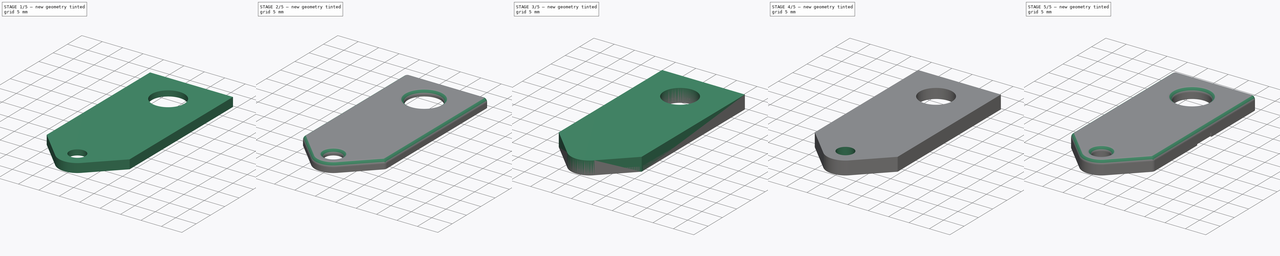
[diagram: build sequence overview — one tinted view per stage of 5, left to right]
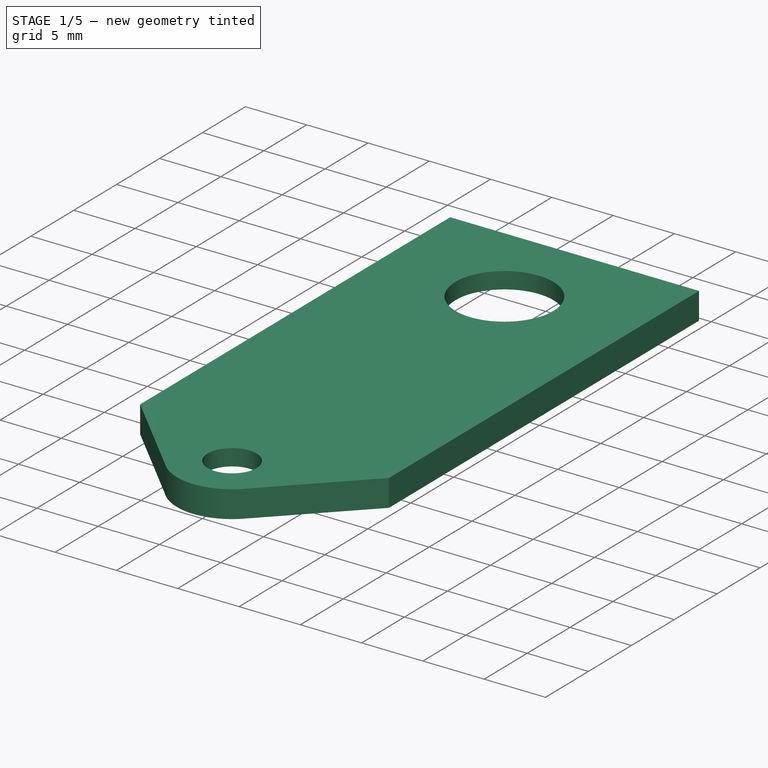
[diagram: stage 1 of 5 — iso view after this stage's code; geometry added in this stage tinted green]
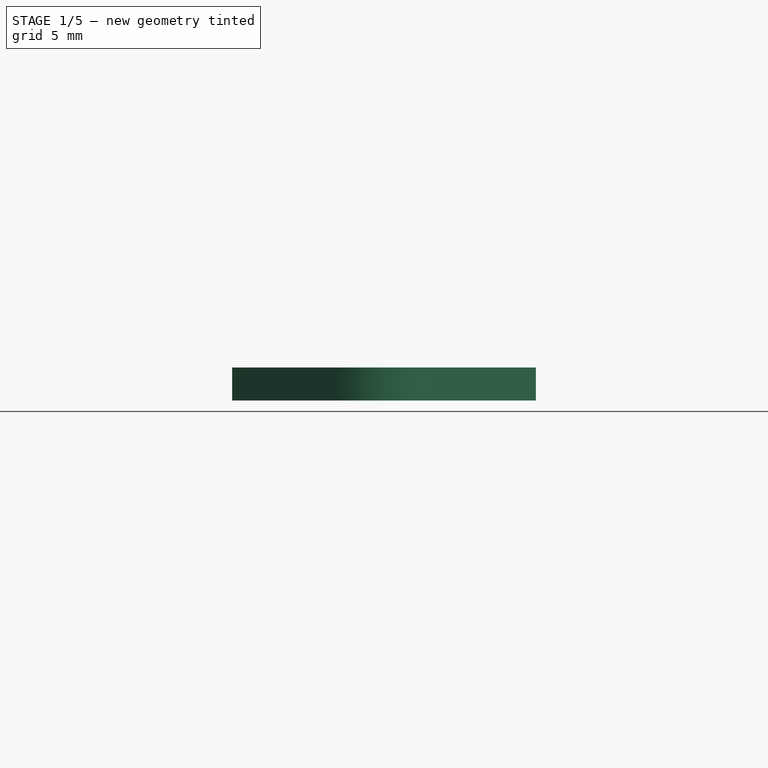
[diagram: stage 1 of 5 — front view after this stage's code; geometry added in this stage tinted green]
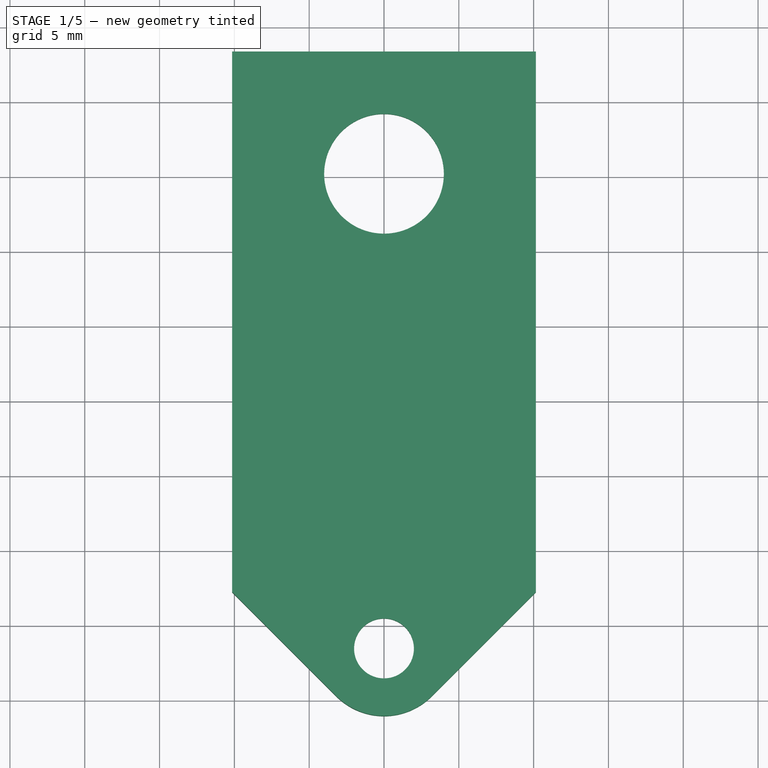
[diagram: stage 1 of 5 — top view after this stage's code; geometry added in this stage tinted green]
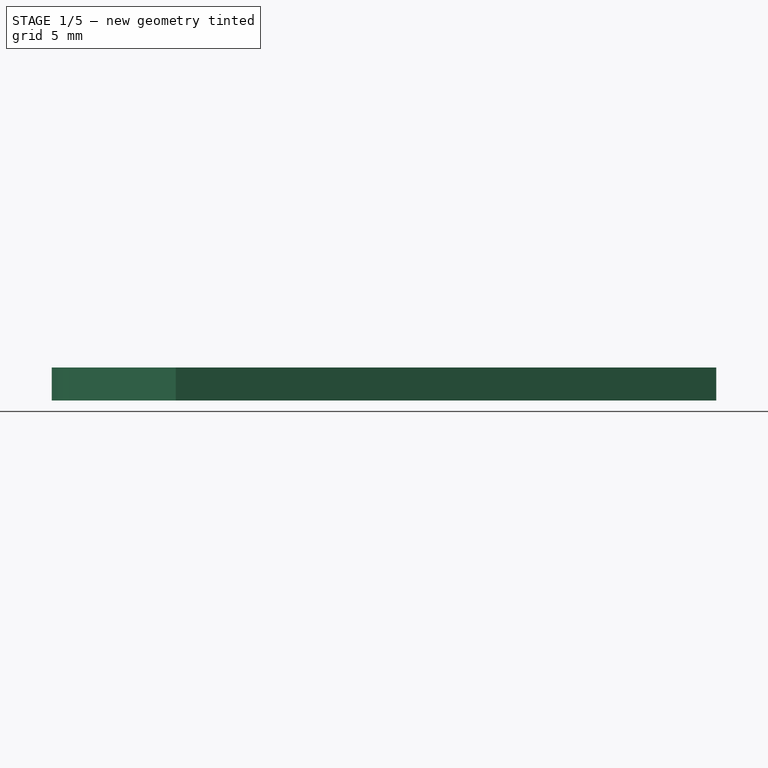
[diagram: stage 1 of 5 — right view after this stage's code; geometry added in this stage tinted green]
FCSTD DOCUMENT  (FreeCAD 0.19R24276 (Git))
Label: nfc_case_FDM
License: All rights reserved
LicenseURL: http://en.wikipedia.org/wiki/All_rights_reserved
objects: Sketcher::SketchObject×16, Part::Feature×14, App::Part×14, PartDesign::Pocket×14, PartDesign::Pad×2, PartDesign::Fillet×2, PartDesign::Body×2
note: 68 computed .brp shape members not serialized (recipe doc carries the construction recipe); baked Part::Feature solids carry a one-line shape summary decoded from their .brp

FEATURE [PartDesign::Body] Body001  label="top_case_FDM"
  Group = -> [Sketch005,Pad003,Sketch007,Sketch008,Sketch016,Pocket005,Pocket006,Pocket007,Sketch018,Pocket008,Sketch019,Pocket009,Sketch020,Pocket010,Fillet,Sketch034,Pocket020,Sketch035,Pocket021]
  Origin = -> Origin019
  Tip = -> Pocket021
FEATURE [Sketcher::SketchObject] Sketch036  label="top_base_sketch001"
  FullyConstrained = true
  MapMode = 5
  Support = -> [XY_Plane036]
  sketch-geometry (6):
    g0: LineSegment StartX=-10.15 StartY=18.375 StartZ=0 EndX=10.15 EndY=18.375 EndZ=0
    g1: LineSegment StartX=10.15 StartY=18.375 StartZ=0 EndX=10.15 EndY=-17.75 EndZ=0
    g2: LineSegment StartX=-10.15 StartY=-17.75 StartZ=0 EndX=-10.15 EndY=18.375 EndZ=0
    g3: ArcOfCircle CenterX=0 CenterY=-21.525 CenterZ=0 NormalX=0 NormalY=0 NormalZ=1 AngleXU=0 Radius=4.51231 StartAngle=3.88231 EndAngle=5.54246
    g4: LineSegment StartX=-10.15 StartY=-17.75 StartZ=0 EndX=-3.33 EndY=-24.57 EndZ=0
    g5: LineSegment StartX=3.33 StartY=-24.57 StartZ=0 EndX=10.15 EndY=-17.75 EndZ=0
  constraints (19):
    c: Coincident(g0,g1)
    c: Coincident(g2,g0)
    c: Horizontal(g0)
    c: Vertical(g1)
    c: Vertical(g2)
    c: Distance(g1) = 36.125
    c: DistanceX(g2,g-1) = 10.15
    c: DistanceY(g1,g-1) = 17.75
    c: PointOnObject(g3,g-2)
    c: DistanceY(g3,g-1) = 21.525
    c: Horizontal(g3,g3)
    c: DistanceX(g2,g1) = 20.3
    c: Horizontal(g2,g1)
    c: Coincident(g4,g2)
    c: Coincident(g4,g3)
    c: Coincident(g5,g3)
    c: Coincident(g5,g1)
    c: Angle(g1,g5) = 2.35619
    c: DistanceY(g3,g-1) = 24.57
FEATURE [Sketcher::SketchObject] Sketch039  label="air_cutout_sketch001"
  FullyConstrained = true
  MapMode = 5
  Support = -> [XY_Plane036]
  sketch-geometry (1):
    g0: Circle CenterX=0 CenterY=10.2 CenterZ=0 NormalX=0 NormalY=0 NormalZ=1 AngleXU=0 Radius=4
  constraints (3):
    c: PointOnObject(g0,g-2)
    c: DistanceY(g-1,g0) = 10.2
    c: Radius(g0) = 4
FEATURE [Sketcher::SketchObject] Sketch040
  FullyConstrained = true
  MapMode = 5
  Support = -> [XY_Plane036]
  sketch-geometry (1):
    g0: Circle CenterX=0 CenterY=-21.525 CenterZ=0 NormalX=0 NormalY=0 NormalZ=1 AngleXU=0 Radius=2
  constraints (3):
    c: PointOnObject(g0,g-2)
    c: Radius(g0) = 2
    c: DistanceY(g0,g-1) = 21.525
FEATURE [Sketcher::SketchObject] Sketch041
  FullyConstrained = true
  MapMode = 5
  Support = -> [XY_Plane036]
  sketch-geometry (8):
    g0: LineSegment StartX=-9.35 StartY=17.2853 StartZ=0 EndX=-9.35 EndY=-17.8147 EndZ=0
    g1: LineSegment StartX=-9.35 StartY=-17.8147 StartZ=0 EndX=-2.6 EndY=-24.5647 EndZ=0
    g2: LineSegment StartX=2.6 StartY=-24.5647 StartZ=0 EndX=9.35 EndY=-17.8147 EndZ=0
    g3: LineSegment StartX=9.35 StartY=-17.8147 StartZ=0 EndX=9.35 EndY=17.2853 EndZ=0
    g4: LineSegment StartX=8.68526 StartY=17.95 StartZ=0 EndX=-8.68526 EndY=17.95 EndZ=0
    g5: ArcOfCircle CenterX=-8.68526 CenterY=17.2853 CenterZ=0 NormalX=0 NormalY=0 NormalZ=1 AngleXU=0 Radius=0.664737 StartAngle=1.5708 EndAngle=3.14159
    g6: ArcOfCircle CenterX=8.68526 CenterY=17.2853 CenterZ=0 NormalX=0 NormalY=0 NormalZ=1 AngleXU=0 Radius=0.664737 StartAngle=-9e-16 EndAngle=1.5708
    g7: ArcOfCircle CenterX=0 CenterY=-21.525 CenterZ=0 NormalX=0 NormalY=0 NormalZ=1 AngleXU=0 Radius=4 StartAngle=4.0048 EndAngle=5.41997
  constraints (27):
    c: Vertical(g0)
    c: Coincident(g1,g0)
    c: Coincident(g3,g2)
    c: Vertical(g3)
    c: Horizontal(g4)
    c: Coincident(g5,g4)
    c: Coincident(g5,g0)
    c: Coincident(g6,g3)
    c: Coincident(g6,g4)
    c: PointOnObject(g7,g-2)
    c: Coincident(g7,g2)
    c: Coincident(g7,g1)
    c: Horizontal(g2,g1)
    c: Angle(g3,g2) = 2.35619
    c: DistanceX(g0,g3) = 18.7
    c: Horizontal(g0,g5)
    c: Horizontal(g5,g6)
    c: Horizontal(g6,g3)
    c: Vertical(g4,g6)
    c: Vertical(g5,g4)
    c: Horizontal(g2,g0)
    c: DistanceY(g7,g-1) = 21.525
    c: Distance(g0) = 35.1
    c: DistanceY(g-1,g4) = 17.95
    c: DistanceX(g0,g-1) = 9.35
    c: Radius(g7) = 4
    c: DistanceX(g0,g1) = 6.75
FEATURE [PartDesign::Pad] Pad011  label="base_block001"
  Direction = (1,1,1)
  Length = 2.2
  Length2 = 100
  Profile = -> Sketch036
  Type = 0
FEATURE [PartDesign::Pocket] Pocket022  label="air_hole001"
  BaseFeature = -> Pad011
  Length = 5
  Length2 = 100
  Profile = -> Sketch039
  Reversed = true
  Type = 0
FEATURE [PartDesign::Pocket] Pocket027  label="misty_keyhole001"
  BaseFeature = -> Pocket022
  Length = 5
  Length2 = 100
  Profile = -> Sketch040
  Reversed = true
  Type = 0
FEATURE [PartDesign::Pocket] Pocket023  label="ridge001"
  BaseFeature = -> Pocket027
  Length = 0.85
  Length2 = 100
  Profile = -> Sketch041
  Reversed = true
  Type = 0
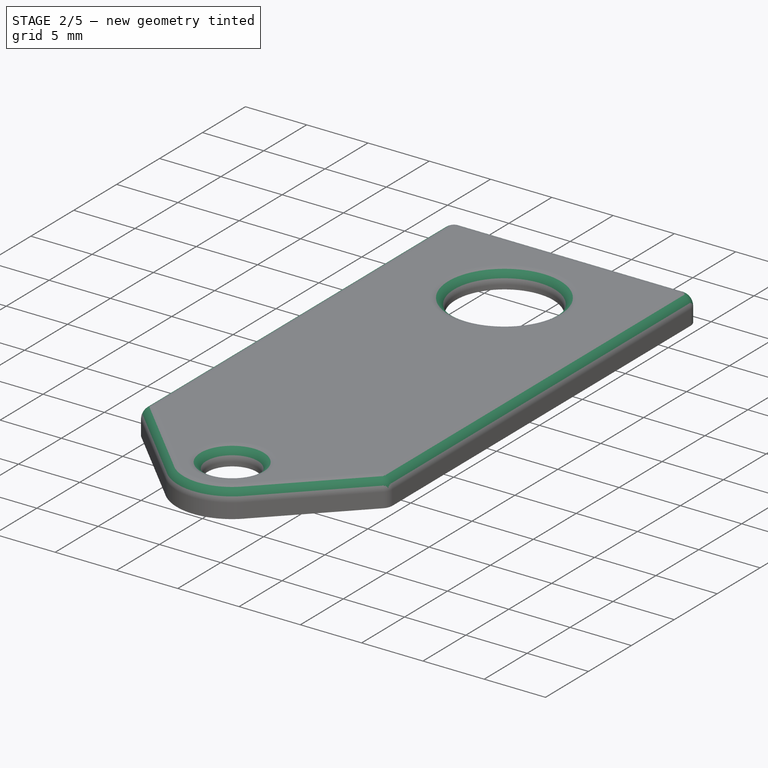
[diagram: stage 2 of 5 — iso view after this stage's code; geometry added in this stage tinted green]
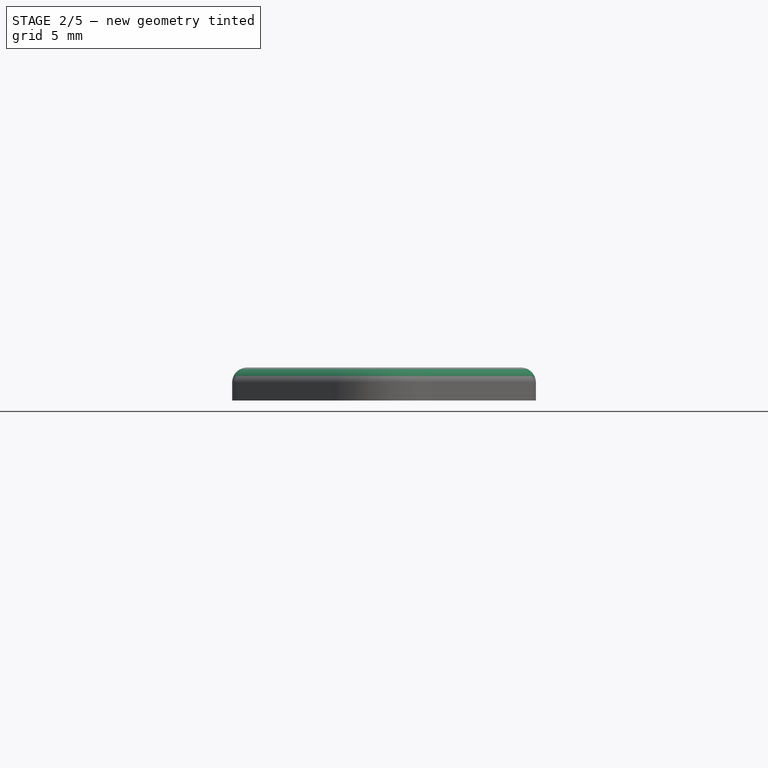
[diagram: stage 2 of 5 — front view after this stage's code; geometry added in this stage tinted green]
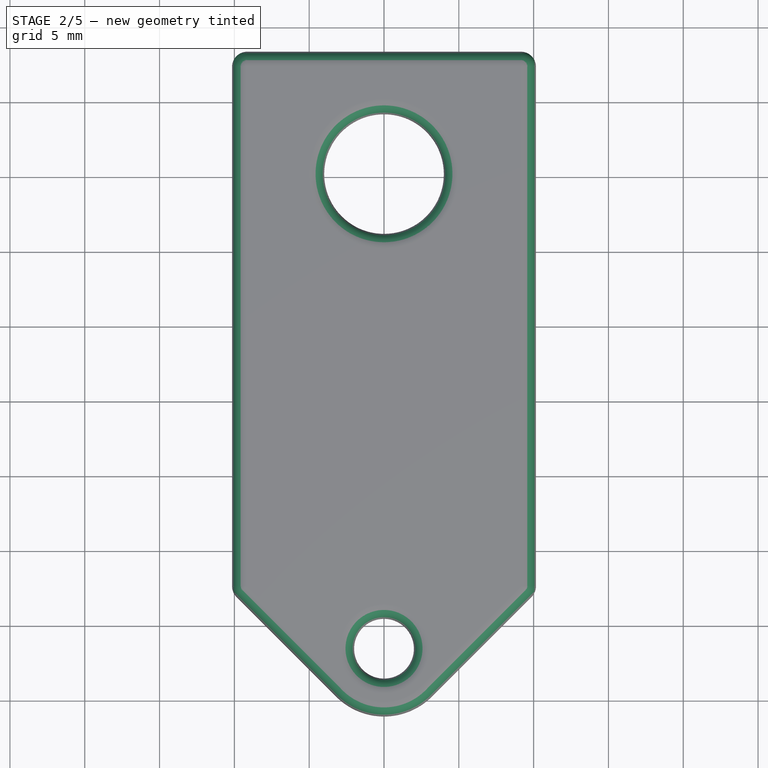
[diagram: stage 2 of 5 — top view after this stage's code; geometry added in this stage tinted green]
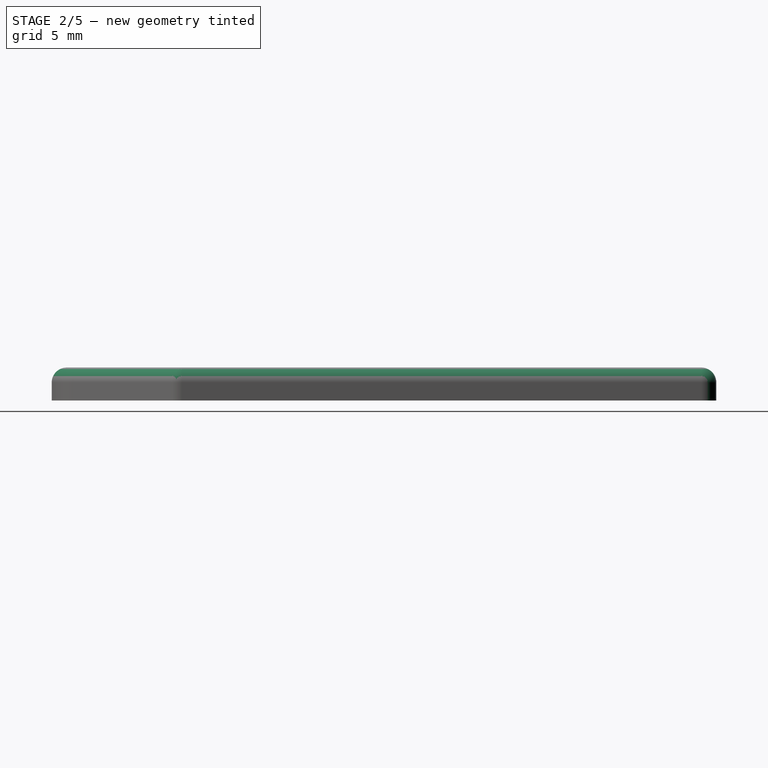
[diagram: stage 2 of 5 — right view after this stage's code; geometry added in this stage tinted green]
FEATURE [Sketcher::SketchObject] Sketch042
  FullyConstrained = true
  MapMode = 5
  Placement = pos=(-9.35,0,0) rot=(0.57735,0.57735,0.57735;2.0944rad)
  Support = -> [Pocket023]
  sketch-geometry (8):
    g0: LineSegment StartX=-9.45 StartY=-1.5 StartZ=0 EndX=-9.8 EndY=-1.5 EndZ=0
    g1: LineSegment StartX=-9.8 StartY=-1.5 StartZ=0 EndX=-9.8 EndY=-2.1 EndZ=0
    g2: LineSegment StartX=-9.8 StartY=-2.1 StartZ=0 EndX=-9.45 EndY=-2.1 EndZ=0
    g3: LineSegment StartX=-9.45 StartY=-2.1 StartZ=0 EndX=-9.45 EndY=-1.5 EndZ=0
    g4: LineSegment StartX=9.8 StartY=-1.5 StartZ=0 EndX=9.45 EndY=-1.5 EndZ=0
    g5: LineSegment StartX=9.45 StartY=-1.5 StartZ=0 EndX=9.45 EndY=-2.1 EndZ=0
    g6: LineSegment StartX=9.45 StartY=-2.1 StartZ=0 EndX=9.8 EndY=-2.1 EndZ=0
    g7: LineSegment StartX=9.8 StartY=-2.1 StartZ=0 EndX=9.8 EndY=-1.5 EndZ=0
  constraints (24):
    c: Coincident(g0,g1)
    c: Coincident(g1,g2)
    c: Coincident(g2,g3)
    c: Coincident(g3,g0)
    c: Horizontal(g0)
    c: Horizontal(g2)
    c: Vertical(g1)
    c: Vertical(g3)
    c: Distance(g2) = 0.35
    c: Distance(g3) = 0.6
    c: DistanceX(g0,g-1) = 9.45
    c: DistanceY(g0,g-1) = 1.5
    c: Coincident(g4,g5)
    c: Coincident(g5,g6)
    c: Coincident(g6,g7)
    c: Coincident(g7,g4)
    c: Horizontal(g4)
    c: Horizontal(g6)
    c: Vertical(g5)
    c: Vertical(g7)
    c: Equal(g2,g6) = 0.35
    c: Equal(g3,g7) = 0.3
    c: Horizontal(g5,g2)
    c: DistanceX(g-1,g4) = 9.45
FEATURE [PartDesign::Pocket] Pocket024  label="bottom_slots001"
  BaseFeature = -> Pocket023
  Length = 25
  Length2 = 100
  Profile = -> Sketch042
  Type = 0
FEATURE [PartDesign::Fillet] Fillet004
  Base = -> Pocket024 [Edge28,Edge27,Face5,Edge5,Edge1]
  BaseFeature = -> Pocket024
  Radius = 1
  SupportTransform = false
FEATURE [Sketcher::SketchObject] Sketch043
  FullyConstrained = true
  MapMode = 5
  Placement = pos=(-10.15,0,0) rot=(0.57735,-0.57735,-0.57735;2.0944rad)
  Support = -> [Fillet004]
  sketch-geometry (4):
    g0: LineSegment StartX=-2.5 StartY=0 StartZ=0 EndX=2.5 EndY=0 EndZ=0
    g1: LineSegment StartX=2.5 StartY=0 StartZ=0 EndX=2.5 EndY=1 EndZ=0
    g2: LineSegment StartX=2.5 StartY=1 StartZ=0 EndX=-2.5 EndY=1 EndZ=0
    g3: LineSegment StartX=-2.5 StartY=1 StartZ=0 EndX=-2.5 EndY=0 EndZ=0
  constraints (12):
    c: Coincident(g0,g1)
    c: Coincident(g1,g2)
    c: Coincident(g2,g3)
    c: Coincident(g3,g0)
    c: Horizontal(g0)
    c: Horizontal(g2)
    c: Vertical(g1)
    c: Vertical(g3)
    c: PointOnObject(g0,g-1)
    c: Distance(g1) = 1
    c: Distance(g0) = 5
    c: DistanceX(g0,g-1) = 2.5
FEATURE [PartDesign::Pocket] Pocket029
  BaseFeature = -> Fillet004
  Length = 0.35
  Length2 = 100
  Profile = -> Sketch043
  Type = 0
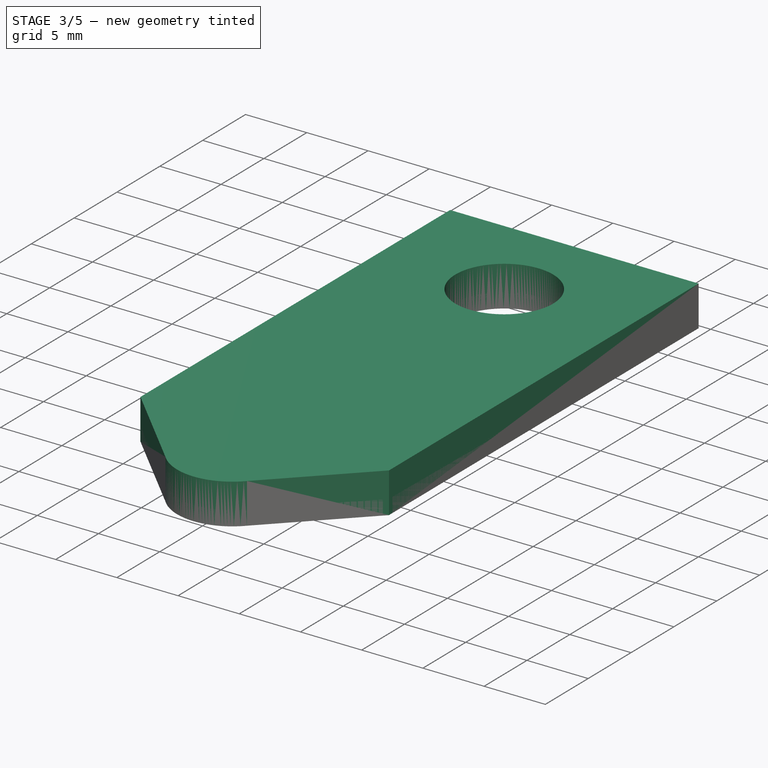
[diagram: stage 3 of 5 — iso view after this stage's code; geometry added in this stage tinted green]
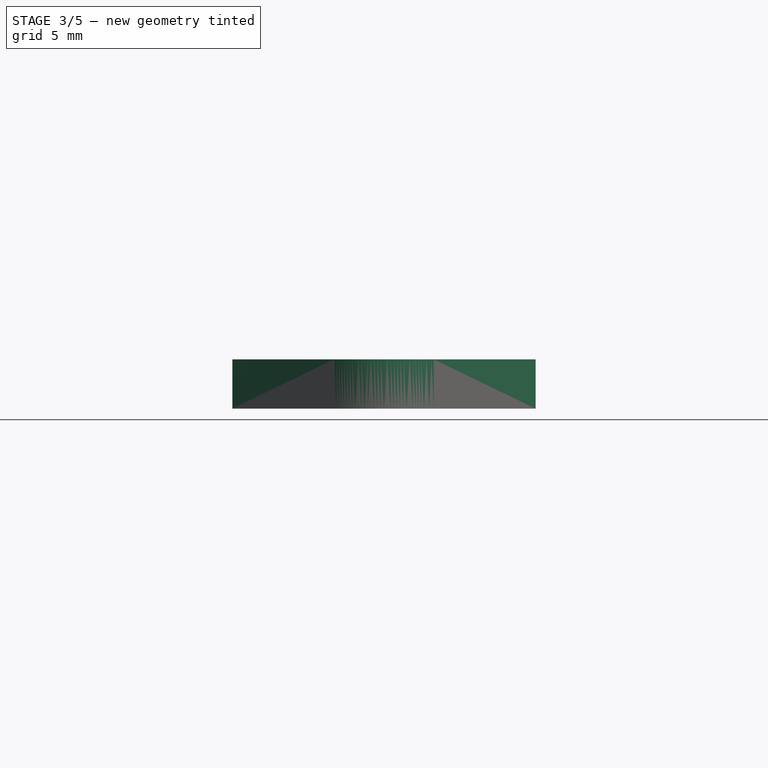
[diagram: stage 3 of 5 — front view after this stage's code; geometry added in this stage tinted green]
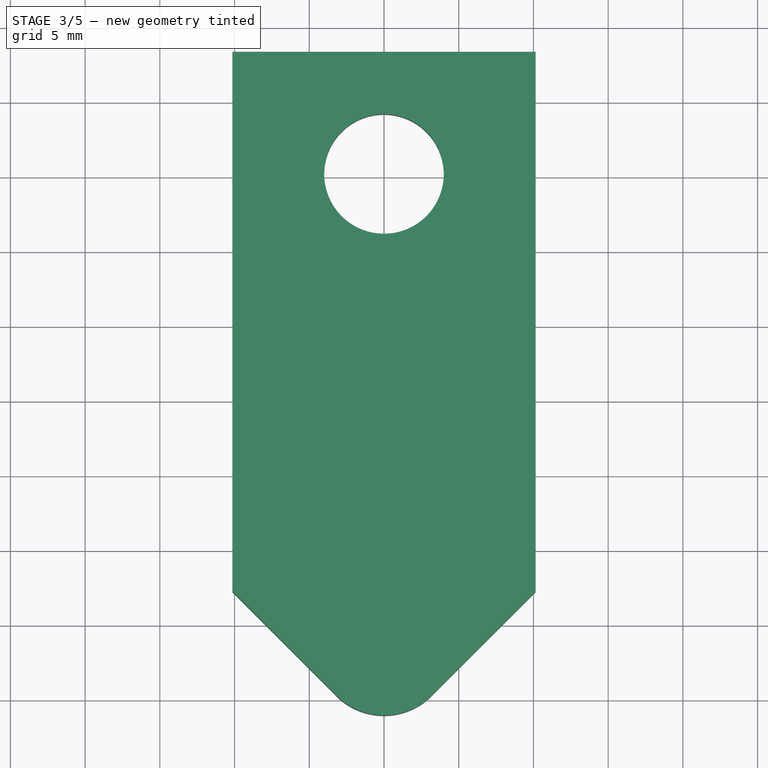
[diagram: stage 3 of 5 — top view after this stage's code; geometry added in this stage tinted green]
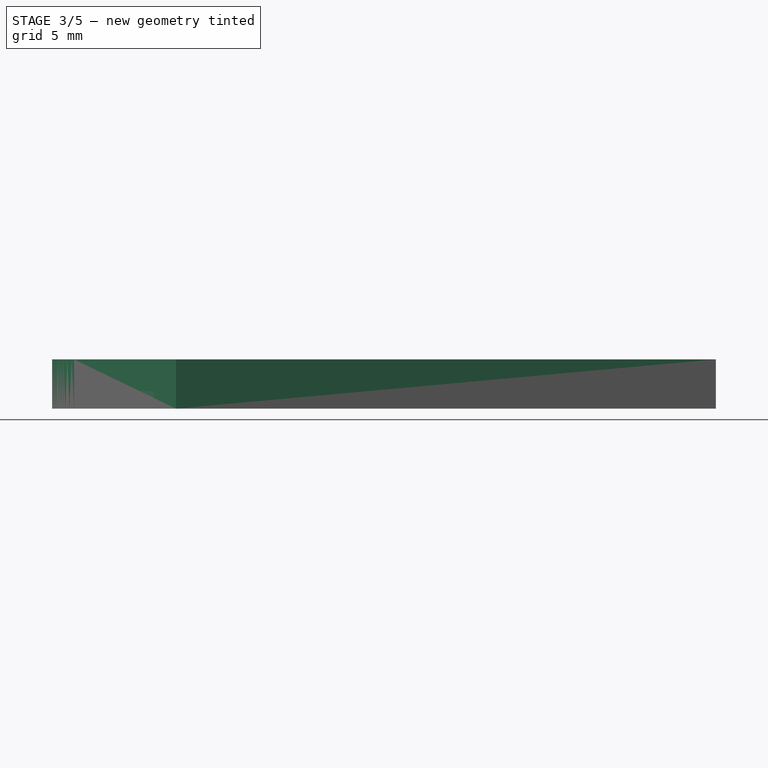
[diagram: stage 3 of 5 — right view after this stage's code; geometry added in this stage tinted green]
FEATURE [Sketcher::SketchObject] Sketch005  label="top_base_sketch"
  FullyConstrained = true
  MapMode = 5
  Support = -> [XY_Plane019]
  sketch-geometry (6):
    g0: LineSegment StartX=-10.15 StartY=18.375 StartZ=0 EndX=10.15 EndY=18.375 EndZ=0
    g1: LineSegment StartX=10.15 StartY=18.375 StartZ=0 EndX=10.15 EndY=-17.75 EndZ=0
    g2: LineSegment StartX=-10.15 StartY=-17.75 StartZ=0 EndX=-10.15 EndY=18.375 EndZ=0
    g3: ArcOfCircle CenterX=0 CenterY=-21.525 CenterZ=0 NormalX=0 NormalY=0 NormalZ=1 AngleXU=0 Radius=4.51231 StartAngle=3.88231 EndAngle=5.54246
    g4: LineSegment StartX=-10.15 StartY=-17.75 StartZ=0 EndX=-3.33 EndY=-24.57 EndZ=0
    g5: LineSegment StartX=3.33 StartY=-24.57 StartZ=0 EndX=10.15 EndY=-17.75 EndZ=0
  constraints (19):
    c: Coincident(g0,g1)
    c: Coincident(g2,g0)
    c: Horizontal(g0)
    c: Vertical(g1)
    c: Vertical(g2)
    c: Distance(g1) = 36.125
    c: DistanceX(g2,g-1) = 10.15
    c: DistanceY(g1,g-1) = 17.75
    c: PointOnObject(g3,g-2)
    c: DistanceY(g3,g-1) = 21.525
    c: Horizontal(g3,g3)
    c: DistanceX(g2,g1) = 20.3
    c: Horizontal(g2,g1)
    c: Coincident(g4,g2)
    c: Coincident(g4,g3)
    c: Coincident(g5,g3)
    c: Coincident(g5,g1)
    c: Angle(g1,g5) = 2.35619
    c: DistanceY(g3,g-1) = 24.57
FEATURE [PartDesign::Pad] Pad003  label="base_block"
  Direction = (1,1,1)
  Length = 3.3
  Length2 = 100
  Profile = -> Sketch005
  Type = 0
FEATURE [Sketcher::SketchObject] Sketch008  label="12_06_sketch"
  FullyConstrained = false
  MapMode = 5
  Support = -> [XY_Plane019]
  sketch-geometry (4):
    g0: LineSegment StartX=-4.71856 StartY=-7.36307 StartZ=0 EndX=0.670417 EndY=-7.36307 EndZ=0
    g1: LineSegment StartX=0.670417 StartY=-7.36307 StartZ=0 EndX=0.670417 EndY=-10.4321 EndZ=0
    g2: LineSegment StartX=0.670417 StartY=-10.4321 StartZ=0 EndX=-4.71856 EndY=-10.4321 EndZ=0
    g3: LineSegment StartX=-4.71856 StartY=-10.4321 StartZ=0 EndX=-4.71856 EndY=-7.36307 EndZ=0
  constraints (8):
    c: Coincident(g0,g1)
    c: Coincident(g1,g2)
    c: Coincident(g2,g3)
    c: Coincident(g3,g0)
    c: Horizontal(g0)
    c: Horizontal(g2)
    c: Vertical(g1)
    c: Vertical(g3)
FEATURE [Part::Feature] Part__Feature  label="SOLID"
  shape: bbox 1.6 x 0.8 x 0.8 mm, 28 faces (baked)
FEATURE [App::Part] C_0603_1608Metric
  Group = -> [Part__Feature]
  Origin = -> Origin022
  Placement = pos=(2.5,0.923832,1.65) rot=(0,0,1;0rad)
FEATURE [Part::Feature] Part__Feature001  label="SOLID001"
  shape: bbox 3.2 x 1.6 x 1.6 mm, 28 faces (baked)
FEATURE [App::Part] C_1206_3216Metric
  Group = -> [Part__Feature001]
  Origin = -> Origin023
  Placement = pos=(-2,-5.12617,1.65) rot=(0,0,1;0rad)
FEATURE [Part::Feature] Part__Feature002  label="SOLID002"
  shape: bbox 1.6 x 0.8 x 0.8 mm, 28 faces (baked)
FEATURE [App::Part] C_0603_1608Metric001
  Group = -> [Part__Feature002]
  Origin = -> Origin024
  Placement = pos=(-2,-2.32617,1.65) rot=(0,0,1;1.5708rad)
FEATURE [Part::Feature] Part__Feature003  label="SOLID003"
  shape: bbox 1.6 x 0.8 x 0.8 mm, 28 faces (baked)
FEATURE [App::Part] C_0603_1608Metric002
  Group = -> [Part__Feature003]
  Origin = -> Origin025
  Placement = pos=(-0.399999,-2.32617,1.65) rot=(0,0,1;1.5708rad)
FEATURE [Part::Feature] Part__Feature004  label="SOLID004"
  shape: bbox 3 x 3 x 0.6 mm, 109 faces (baked)
FEATURE [App::Part] QFN_16_1EP_3x3mm_P0_5mm_EP2_7x2_7mm_ThermalVias  label="QFN-16-1EP_3x3mm_P0.5mm_EP2.7x2.7mm_ThermalVias"
  Group = -> [Part__Feature004]
  Origin = -> Origin026
  Placement = pos=(3,-3.28796,1.65) rot=(0,0,1;1.5708rad)
FEATURE [Part::Feature] Part__Feature005  label="SOLID005"
  shape: bbox 3 x 3 x 0.6 mm, 134 faces (baked)
FEATURE [App::Part] QFN_20_1EP_3x3mm_P0_45mm_EP1_6x1_6mm  label="QFN-20-1EP_3x3mm_P0.45mm_EP1.6x1.6mm"
  Group = -> [Part__Feature005]
  Origin = -> Origin027
  Placement = pos=(-2.15,3.07383,1.65) rot=(0,0,1;0rad)
FEATURE [Part::Feature] Part__Feature006  label="SOLID006"
  shape: bbox 1.6 x 0.8 x 0.8 mm, 28 faces (baked)
FEATURE [App::Part] C_0603_1608Metric003
  Group = -> [Part__Feature006]
  Origin = -> Origin028
  Placement = pos=(-3.6,-2.32617,1.65) rot=(0,0,1;1.5708rad)
FEATURE [Part::Feature] Part__Feature007  label="SOLID007"
  shape: bbox 1.6 x 0.87 x 0.66 mm, 39 faces (baked)
FEATURE [App::Part] D_0603_1608Metric
  Group = -> [Part__Feature007]
  Origin = -> Origin029
  Placement = pos=(0.750001,-8.17617,1.65) rot=(0,0,-1;1.5708rad)
FEATURE [Part::Feature] Part__Feature008  label="SOLID008"
  shape: bbox 1.6 x 0.8 x 0.45 mm, 26 faces (baked)
FEATURE [App::Part] R_0603_1608Metric
  Group = -> [Part__Feature008]
  Origin = -> Origin030
  Placement = pos=(2.5,4.87383,1.65) rot=(0,0,1;0rad)
FEATURE [Part::Feature] Part__Feature009  label="SOLID009"
  shape: bbox 1 x 0.5 x 0.5 mm, 28 faces (baked)
FEATURE [App::Part] C_0402_1005Metric
  Group = -> [Part__Feature009]
  Origin = -> Origin031
  Placement = pos=(1e-06,12.9738,1.65) rot=(0,0,1;3.14159rad)
FEATURE [Part::Feature] Part__Feature010  label="SOLID010"
  shape: bbox 1 x 0.5 x 0.5 mm, 28 faces (baked)
FEATURE [App::Part] C_0402_1005Metric001
  Group = -> [Part__Feature010]
  Origin = -> Origin032
  Placement = pos=(2.5,-6.62617,1.65) rot=(0,0,1;3.14159rad)
FEATURE [Part::Feature] Part__Feature011  label="SOLID011"
  shape: bbox 1.6 x 0.8 x 0.45 mm, 26 faces (baked)
FEATURE [App::Part] R_0603_1608Metric001
  Group = -> [Part__Feature011]
  Origin = -> Origin033
  Placement = pos=(2.5,2.52383,1.65) rot=(0,0,1;0rad)
FEATURE [Part::Feature] Part__Feature012  label="SOLID012"
  shape: bbox 1.6 x 0.87 x 0.66 mm, 39 faces (baked)
FEATURE [App::Part] D_0603_1608Metric001
  Group = -> [Part__Feature012]
  Origin = -> Origin034
  Placement = pos=(-0.899999,-8.17617,1.65) rot=(0,0,-1;1.5708rad)
FEATURE [Part::Feature] Part__Feature013  label="nfc_sense PCB"
  shape: bbox 18.6 x 43.15 x 1.6 mm, 19 faces (baked)
FEATURE [App::Part] nfc_sense_1  label="nfc_sense 1"
  Group = -> [C_0603_1608Metric,C_1206_3216Metric,C_0603_1608Metric001,C_0603_1608Metric002,QFN_16_1EP_3x3mm_P0_5mm_EP2_7x2_7mm_ThermalVias,QFN_20_1EP_3x3mm_P0_45mm_EP1_6x1_6mm,C_0603_1608Metric003,D_0603_1608Metric,R_0603_1608Metric,C_0402_1005Metric,C_0402_1005Metric001,R_0603_1608Metric001,D_0603_1608Metric001,Part__Feature013]
  Origin = -> Origin035
  Placement = pos=(0,-3.7,-0.8) rot=(0,0,1;0rad)
FEATURE [Sketcher::SketchObject] Sketch016  label="air_cutout_sketch"
  FullyConstrained = true
  MapMode = 5
  Support = -> [XY_Plane019]
  sketch-geometry (1):
    g0: Circle CenterX=0 CenterY=10.2 CenterZ=0 NormalX=0 NormalY=0 NormalZ=1 AngleXU=0 Radius=4
  constraints (3):
    c: PointOnObject(g0,g-2)
    c: DistanceY(g-1,g0) = 10.2
    c: Radius(g0) = 4
FEATURE [PartDesign::Pocket] Pocket005  label="air_hole"
  BaseFeature = -> Pad003
  Length = 5
  Length2 = 100
  Profile = -> Sketch016
  Reversed = true
  Type = 0
FEATURE [Sketcher::SketchObject] Sketch007  label="parts_sketch"
  FullyConstrained = false
  MapMode = 5
  Placement = pos=(0,0,0) rot=(1,0,0;3.14159rad)
  Support = -> [Pocket005]
  sketch-geometry (4):
    g0: LineSegment StartX=-5.5 StartY=-3.72239 StartZ=0 EndX=5.5 EndY=-3.72239 EndZ=0
    g1: LineSegment StartX=5.5 StartY=-3.72239 StartZ=0 EndX=5.5 EndY=14.2776 EndZ=0
    g2: LineSegment StartX=5.5 StartY=14.2776 StartZ=0 EndX=-5.5 EndY=14.2776 EndZ=0
    g3: LineSegment StartX=-5.5 StartY=14.2776 StartZ=0 EndX=-5.5 EndY=-3.72239 EndZ=0
  constraints (11):
    c: Coincident(g0,g1)
    c: Coincident(g1,g2)
    c: Coincident(g2,g3)
    c: Coincident(g3,g0)
    c: Horizontal(g0)
    c: Horizontal(g2)
    c: Vertical(g1)
    c: Vertical(g3)
    c: Distance(g0) = 11
    c: Distance(g1) = 18
    c: DistanceX(g-1,g0) = 5.5
FEATURE [PartDesign::Pocket] Pocket006  label="parts_cut"
  BaseFeature = -> Pocket005
  Length = 2.7
  Length2 = 100
  Profile = -> Sketch007
  Type = 0
FEATURE [Sketcher::SketchObject] Sketch044
  FullyConstrained = true
  MapMode = 5
  Placement = pos=(10.15,0,0) rot=(0.57735,0.57735,0.57735;2.0944rad)
  Support = -> [Pocket029]
  sketch-geometry (4):
    g0: LineSegment StartX=-2.5 StartY=0 StartZ=0 EndX=2.5 EndY=0 EndZ=0
    g1: LineSegment StartX=2.5 StartY=0 StartZ=0 EndX=2.5 EndY=1 EndZ=0
    g2: LineSegment StartX=2.5 StartY=1 StartZ=0 EndX=-2.5 EndY=1 EndZ=0
    g3: LineSegment StartX=-2.5 StartY=1 StartZ=0 EndX=-2.5 EndY=0 EndZ=0
  constraints (12):
    c: Coincident(g0,g1)
    c: Coincident(g1,g2)
    c: Coincident(g2,g3)
    c: Coincident(g3,g0)
    c: Horizontal(g0)
    c: Horizontal(g2)
    c: Vertical(g1)
    c: Vertical(g3)
    c: PointOnObject(g0,g-1)
    c: Distance(g0) = 5
    c: Distance(g1) = 1
    c: DistanceX(g0,g-1) = 2.5
FEATURE [PartDesign::Pocket] Pocket028
  BaseFeature = -> Pocket029
  Length = 0.35
  Length2 = 100
  Profile = -> Sketch044
  Type = 0
FEATURE [PartDesign::Body] Body002  label="bottom_case_FDM"
  Group = -> [Sketch036,Pad011,Sketch039,Pocket022,Sketch040,Pocket027,Sketch041,Pocket023,Sketch042,Pocket024,Fillet004,Sketch043,Pocket029,Sketch044,Pocket028]
  Origin = -> Origin036
  Placement = pos=(0,0,0) rot=(0,1,0;3.14159rad)
  Tip = -> Pocket028
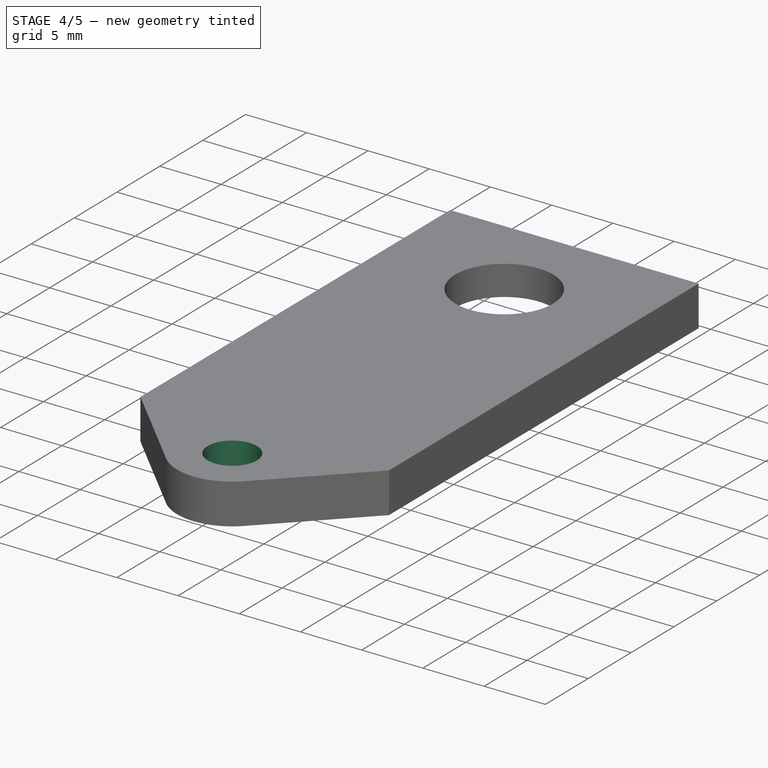
[diagram: stage 4 of 5 — iso view after this stage's code; geometry added in this stage tinted green]
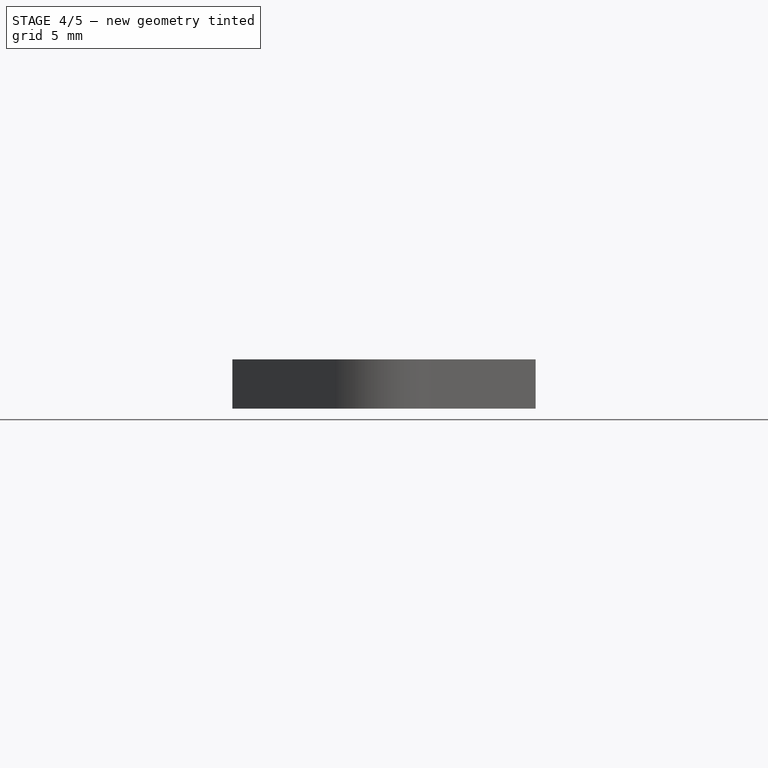
[diagram: stage 4 of 5 — front view after this stage's code; geometry added in this stage tinted green]
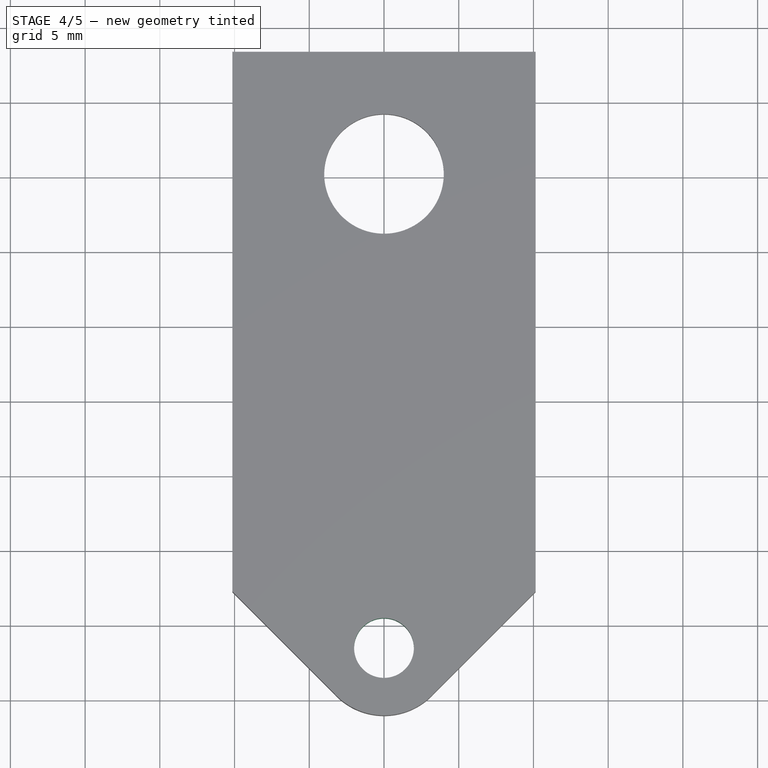
[diagram: stage 4 of 5 — top view after this stage's code; geometry added in this stage tinted green]
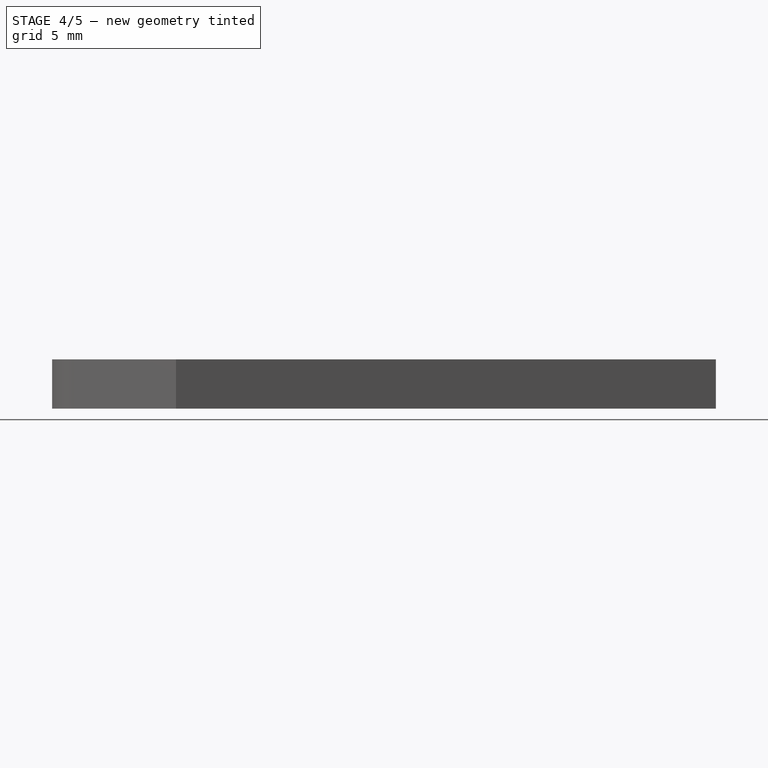
[diagram: stage 4 of 5 — right view after this stage's code; geometry added in this stage tinted green]
FEATURE [PartDesign::Pocket] Pocket007  label="12_06_cut"
  BaseFeature = -> Pocket006
  Length = 1
  Length2 = 100
  Profile = -> Sketch008
  Reversed = true
  Type = 0
FEATURE [Sketcher::SketchObject] Sketch018
  FullyConstrained = true
  MapMode = 5
  Support = -> [XY_Plane019]
  sketch-geometry (1):
    g0: Circle CenterX=0 CenterY=-21.525 CenterZ=0 NormalX=0 NormalY=0 NormalZ=1 AngleXU=0 Radius=2
  constraints (3):
    c: PointOnObject(g0,g-2)
    c: Radius(g0) = 2
    c: DistanceY(g0,g-1) = 21.525
FEATURE [PartDesign::Pocket] Pocket008  label="misty_keyhole"
  BaseFeature = -> Pocket007
  Length = 5
  Length2 = 100
  Profile = -> Sketch018
  Reversed = true
  Type = 0
FEATURE [Sketcher::SketchObject] Sketch019
  FullyConstrained = true
  MapMode = 5
  Support = -> [XY_Plane019]
  sketch-geometry (8):
    g0: LineSegment StartX=-9.35 StartY=17.2853 StartZ=0 EndX=-9.35 EndY=-17.8147 EndZ=0
    g1: LineSegment StartX=-9.35 StartY=-17.8147 StartZ=0 EndX=-2.6 EndY=-24.5647 EndZ=0
    g2: LineSegment StartX=2.6 StartY=-24.5647 StartZ=0 EndX=9.35 EndY=-17.8147 EndZ=0
    g3: LineSegment StartX=9.35 StartY=-17.8147 StartZ=0 EndX=9.35 EndY=17.2853 EndZ=0
    g4: LineSegment StartX=8.68526 StartY=17.95 StartZ=0 EndX=-8.68526 EndY=17.95 EndZ=0
    g5: ArcOfCircle CenterX=-8.68526 CenterY=17.2853 CenterZ=0 NormalX=0 NormalY=0 NormalZ=1 AngleXU=0 Radius=0.664737 StartAngle=1.5708 EndAngle=3.14159
    g6: ArcOfCircle CenterX=8.68526 CenterY=17.2853 CenterZ=0 NormalX=0 NormalY=0 NormalZ=1 AngleXU=0 Radius=0.664737 StartAngle=-9e-16 EndAngle=1.5708
    g7: ArcOfCircle CenterX=0 CenterY=-21.525 CenterZ=0 NormalX=0 NormalY=0 NormalZ=1 AngleXU=0 Radius=4 StartAngle=4.0048 EndAngle=5.41997
  constraints (27):
    c: Vertical(g0)
    c: Coincident(g1,g0)
    c: Coincident(g3,g2)
    c: Vertical(g3)
    c: Horizontal(g4)
    c: Coincident(g5,g4)
    c: Coincident(g5,g0)
    c: Coincident(g6,g3)
    c: Coincident(g6,g4)
    c: PointOnObject(g7,g-2)
    c: Coincident(g7,g2)
    c: Coincident(g7,g1)
    c: Horizontal(g2,g1)
    c: Angle(g3,g2) = 2.35619
    c: DistanceX(g0,g3) = 18.7
    c: Horizontal(g0,g5)
    c: Horizontal(g5,g6)
    c: Horizontal(g6,g3)
    c: Vertical(g4,g6)
    c: Vertical(g5,g4)
    c: Horizontal(g2,g0)
    c: DistanceY(g7,g-1) = 21.525
    c: Distance(g0) = 35.1
    c: DistanceY(g-1,g4) = 17.95
    c: DistanceX(g0,g-1) = 9.35
    c: Radius(g7) = 4
    c: DistanceX(g0,g1) = 6.75
FEATURE [PartDesign::Pocket] Pocket009  label="ridge"
  BaseFeature = -> Pocket008
  Length = 0.85
  Length2 = 100
  Profile = -> Sketch019
  Reversed = true
  Type = 0
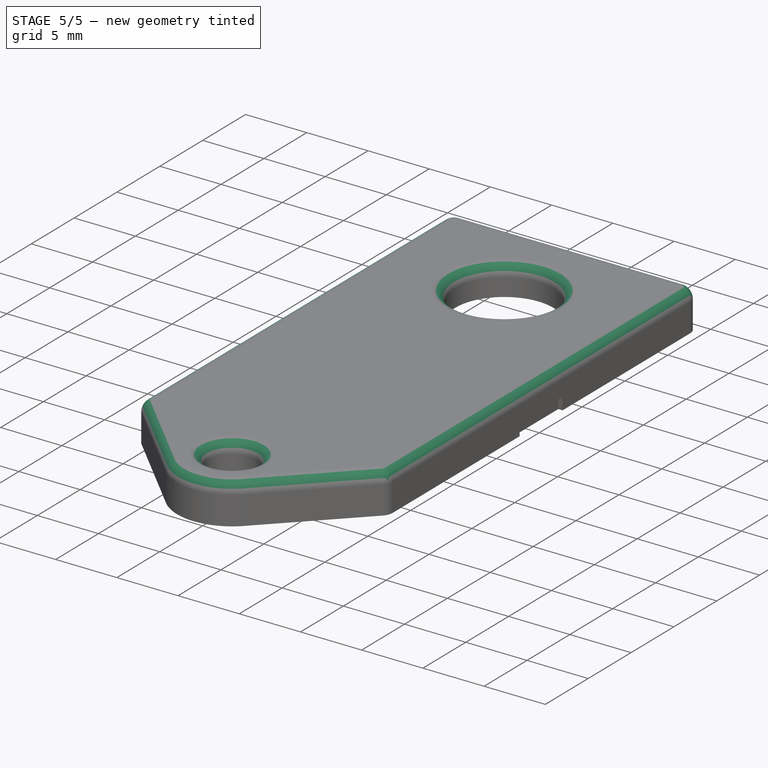
[diagram: stage 5 of 5 — iso view after this stage's code; geometry added in this stage tinted green]
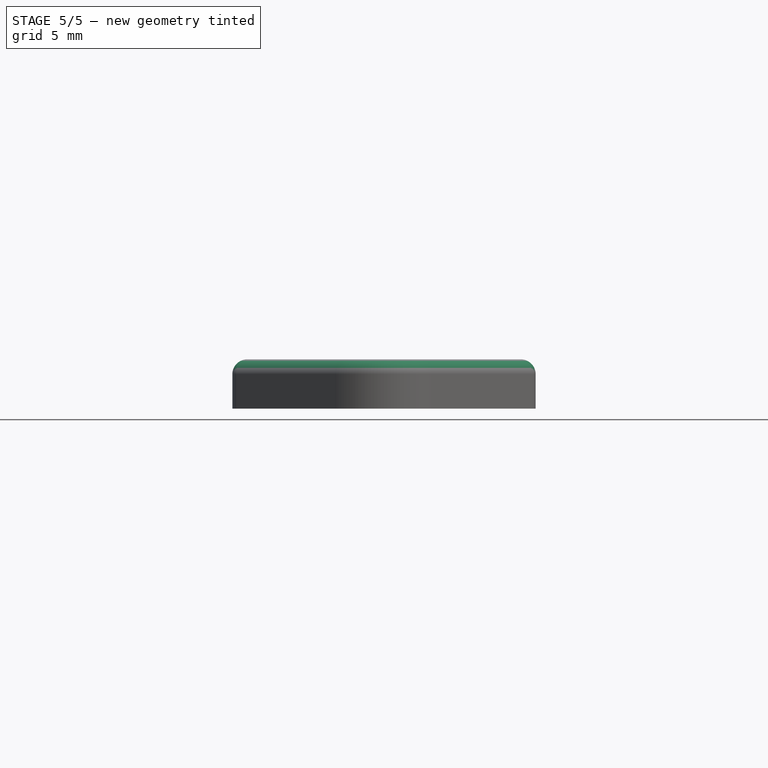
[diagram: stage 5 of 5 — front view after this stage's code; geometry added in this stage tinted green]
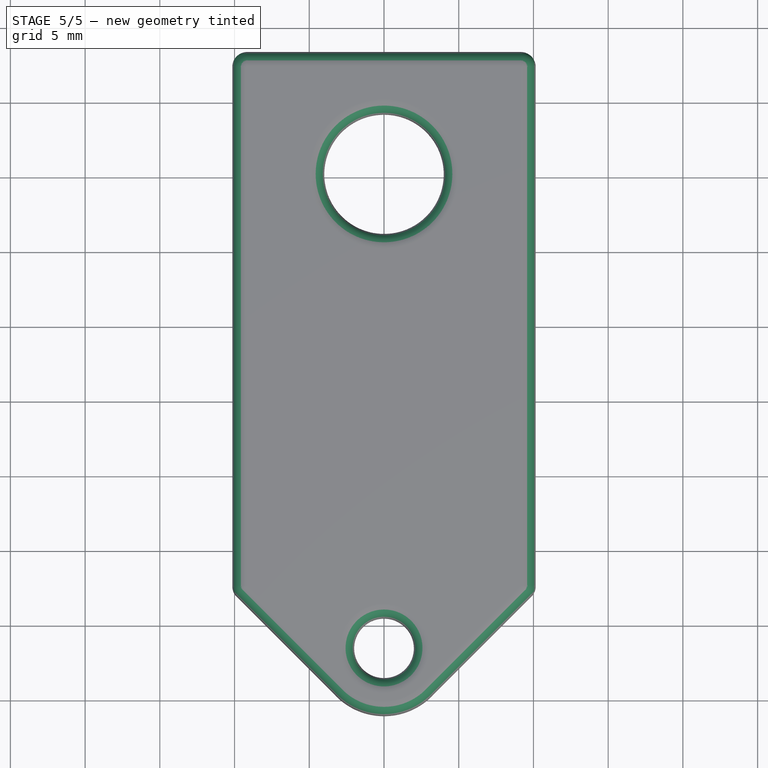
[diagram: stage 5 of 5 — top view after this stage's code; geometry added in this stage tinted green]
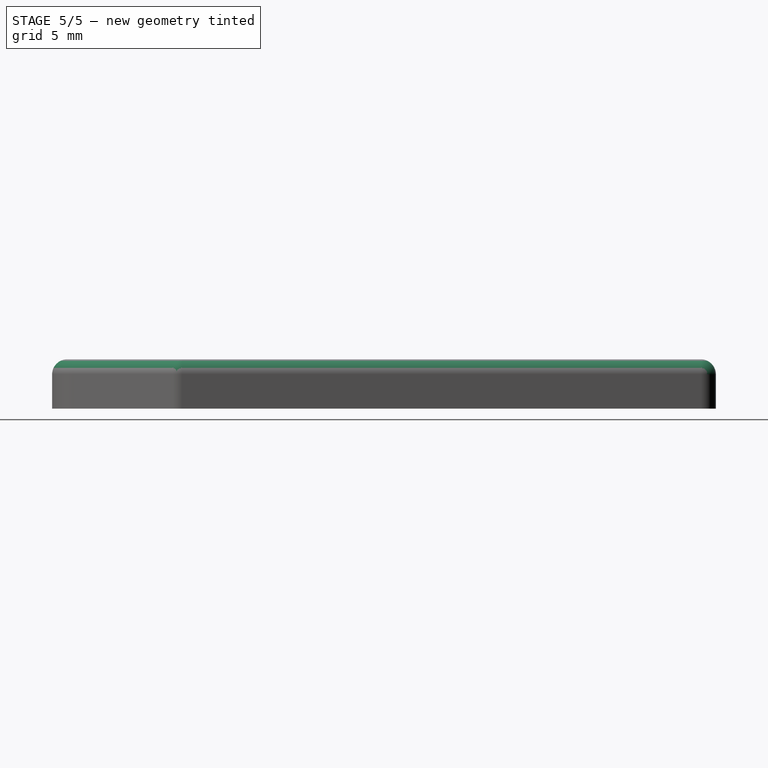
[diagram: stage 5 of 5 — right view after this stage's code; geometry added in this stage tinted green]
FEATURE [Sketcher::SketchObject] Sketch020
  FullyConstrained = true
  MapMode = 5
  Placement = pos=(-9.35,0,0) rot=(0.57735,0.57735,0.57735;2.0944rad)
  Support = -> [Pocket009]
  sketch-geometry (8):
    g0: LineSegment StartX=-9.45 StartY=-1.5 StartZ=0 EndX=-9.8 EndY=-1.5 EndZ=0
    g1: LineSegment StartX=-9.8 StartY=-1.5 StartZ=0 EndX=-9.8 EndY=-2.1 EndZ=0
    g2: LineSegment StartX=-9.8 StartY=-2.1 StartZ=0 EndX=-9.45 EndY=-2.1 EndZ=0
    g3: LineSegment StartX=-9.45 StartY=-2.1 StartZ=0 EndX=-9.45 EndY=-1.5 EndZ=0
    g4: LineSegment StartX=9.8 StartY=-1.5 StartZ=0 EndX=9.45 EndY=-1.5 EndZ=0
    g5: LineSegment StartX=9.45 StartY=-1.5 StartZ=0 EndX=9.45 EndY=-2.1 EndZ=0
    g6: LineSegment StartX=9.45 StartY=-2.1 StartZ=0 EndX=9.8 EndY=-2.1 EndZ=0
    g7: LineSegment StartX=9.8 StartY=-2.1 StartZ=0 EndX=9.8 EndY=-1.5 EndZ=0
  constraints (24):
    c: Coincident(g0,g1)
    c: Coincident(g1,g2)
    c: Coincident(g2,g3)
    c: Coincident(g3,g0)
    c: Horizontal(g0)
    c: Horizontal(g2)
    c: Vertical(g1)
    c: Vertical(g3)
    c: Distance(g2) = 0.35
    c: Distance(g3) = 0.6
    c: DistanceX(g0,g-1) = 9.45
    c: DistanceY(g0,g-1) = 1.5
    c: Coincident(g4,g5)
    c: Coincident(g5,g6)
    c: Coincident(g6,g7)
    c: Coincident(g7,g4)
    c: Horizontal(g4)
    c: Horizontal(g6)
    c: Vertical(g5)
    c: Vertical(g7)
    c: Equal(g2,g6) = 0.35
    c: Equal(g3,g7) = 0.3
    c: Horizontal(g5,g2)
    c: DistanceX(g-1,g4) = 9.45
FEATURE [PartDesign::Pocket] Pocket010  label="bottom_slots"
  BaseFeature = -> Pocket009
  Length = 25
  Length2 = 100
  Profile = -> Sketch020
  Type = 0
FEATURE [PartDesign::Fillet] Fillet
  Base = -> Pocket010 [Edge28,Edge27,Face5,Edge5,Edge1]
  BaseFeature = -> Pocket010
  Radius = 1
  SupportTransform = false
FEATURE [Sketcher::SketchObject] Sketch034
  FullyConstrained = true
  MapMode = 5
  Placement = pos=(-10.15,0,0) rot=(0.57735,-0.57735,-0.57735;2.0944rad)
  Support = -> [Fillet]
  sketch-geometry (4):
    g0: LineSegment StartX=-2.5 StartY=0 StartZ=0 EndX=2.5 EndY=0 EndZ=0
    g1: LineSegment StartX=2.5 StartY=0 StartZ=0 EndX=2.5 EndY=1 EndZ=0
    g2: LineSegment StartX=2.5 StartY=1 StartZ=0 EndX=-2.5 EndY=1 EndZ=0
    g3: LineSegment StartX=-2.5 StartY=1 StartZ=0 EndX=-2.5 EndY=0 EndZ=0
  constraints (12):
    c: Coincident(g0,g1)
    c: Coincident(g1,g2)
    c: Coincident(g2,g3)
    c: Coincident(g3,g0)
    c: Horizontal(g0)
    c: Horizontal(g2)
    c: Vertical(g1)
    c: Vertical(g3)
    c: PointOnObject(g0,g-1)
    c: Distance(g1) = 1
    c: Distance(g0) = 5
    c: DistanceX(g0,g-1) = 2.5
FEATURE [PartDesign::Pocket] Pocket020
  BaseFeature = -> Fillet
  Length = 0.35
  Length2 = 100
  Profile = -> Sketch034
  Type = 0
FEATURE [Sketcher::SketchObject] Sketch035
  FullyConstrained = true
  MapMode = 5
  Placement = pos=(10.15,0,0) rot=(0.57735,0.57735,0.57735;2.0944rad)
  Support = -> [Pocket020]
  sketch-geometry (4):
    g0: LineSegment StartX=-2.5 StartY=0 StartZ=0 EndX=2.5 EndY=0 EndZ=0
    g1: LineSegment StartX=2.5 StartY=0 StartZ=0 EndX=2.5 EndY=1 EndZ=0
    g2: LineSegment StartX=2.5 StartY=1 StartZ=0 EndX=-2.5 EndY=1 EndZ=0
    g3: LineSegment StartX=-2.5 StartY=1 StartZ=0 EndX=-2.5 EndY=0 EndZ=0
  constraints (12):
    c: Coincident(g0,g1)
    c: Coincident(g1,g2)
    c: Coincident(g2,g3)
    c: Coincident(g3,g0)
    c: Horizontal(g0)
    c: Horizontal(g2)
    c: Vertical(g1)
    c: Vertical(g3)
    c: PointOnObject(g0,g-1)
    c: Distance(g0) = 5
    c: Distance(g1) = 1
    c: DistanceX(g0,g-1) = 2.5
FEATURE [PartDesign::Pocket] Pocket021
  BaseFeature = -> Pocket020
  Length = 0.35
  Length2 = 100
  Profile = -> Sketch035
  Type = 0
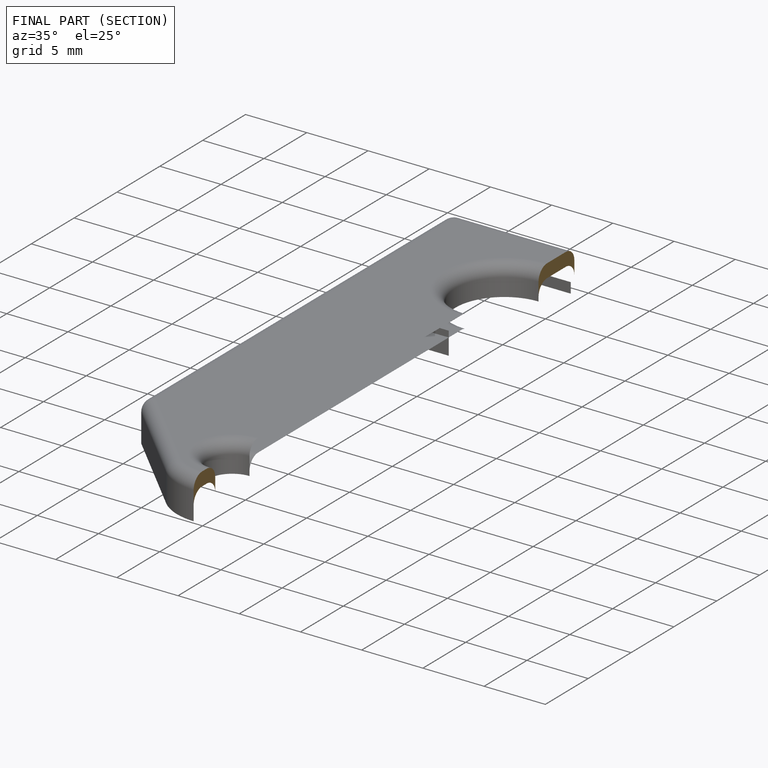
[diagram: finished part — half-section view (interior)]
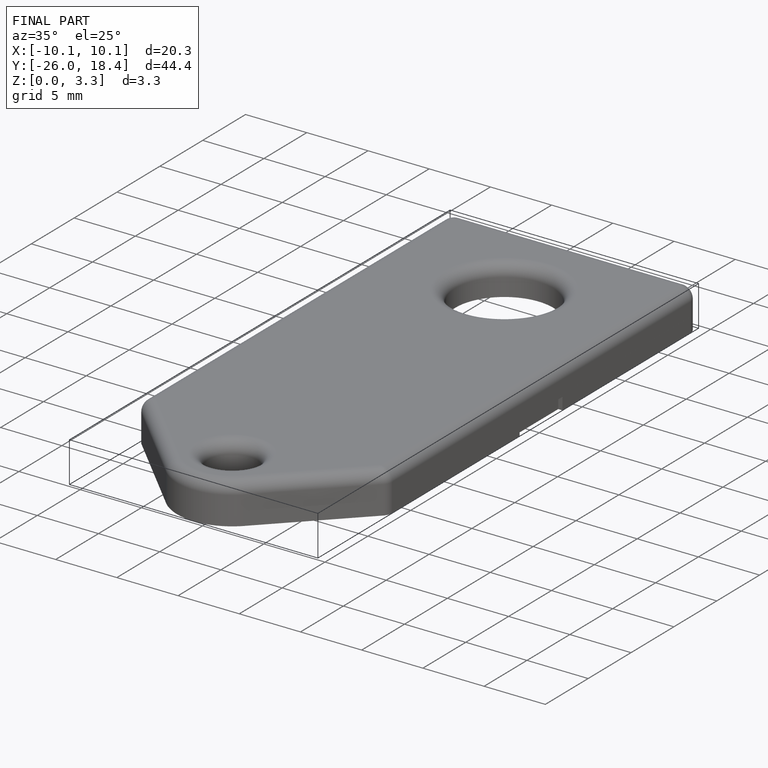
[diagram: finished part — iso view with bounding-box wireframe]
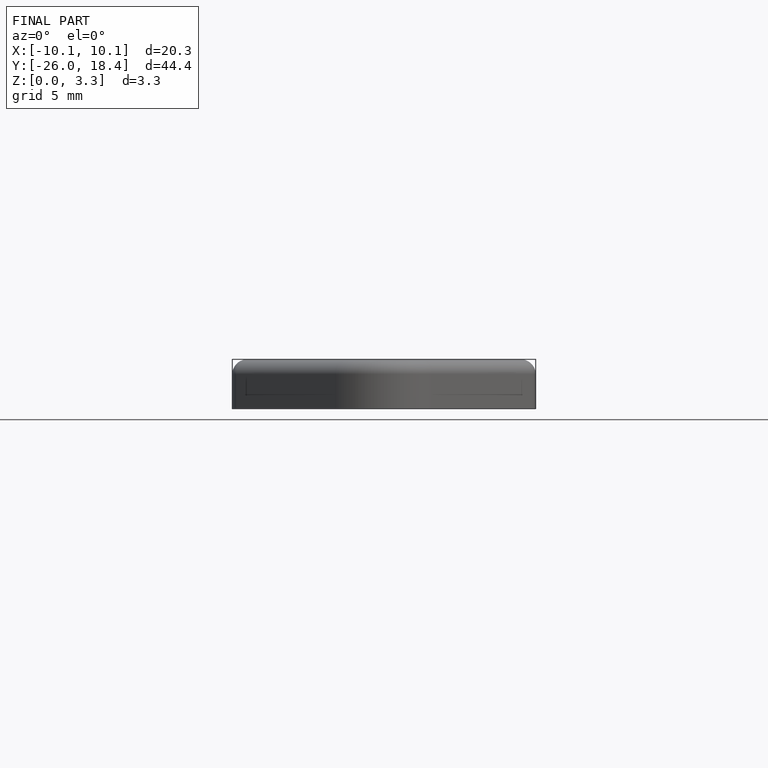
[diagram: finished part — front view with bounding-box wireframe]
